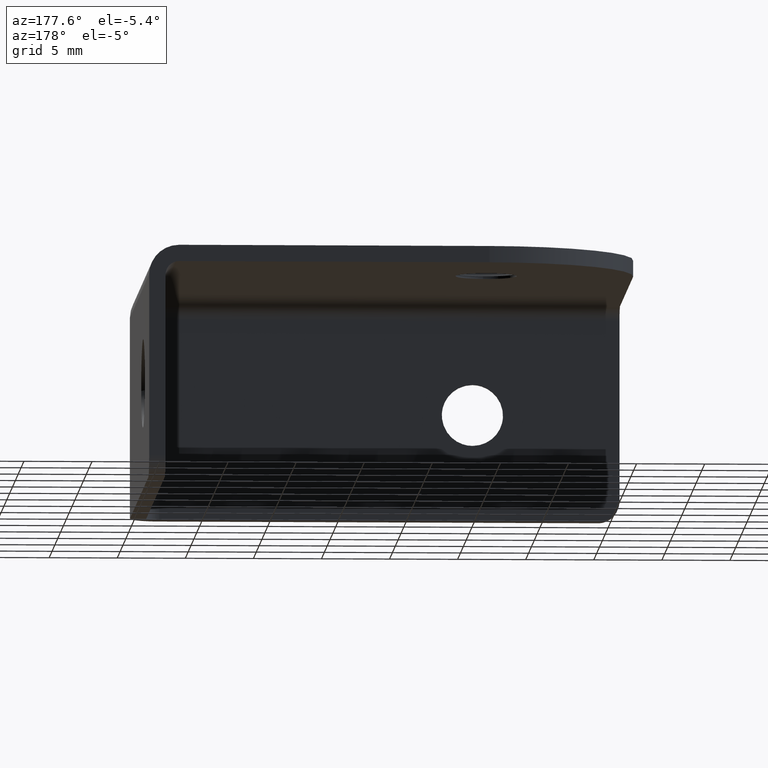
[diagram: clean part render]
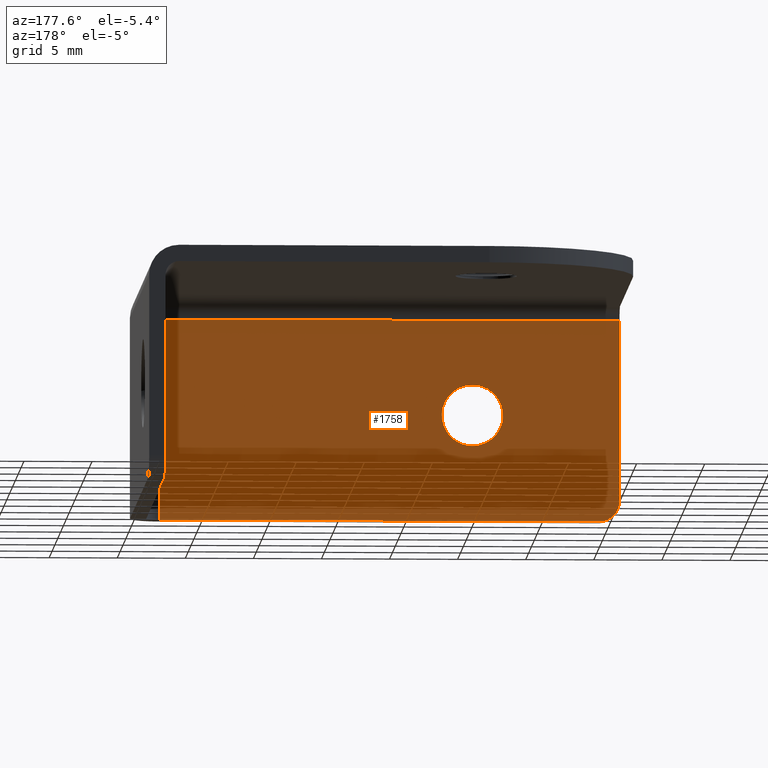
[diagram: same view with one face highlighted and labeled with its STEP entity id]
A machine part, auxiliary view. The second image highlights one B-rep face of the part: STEP entity #1758.
In plain terms, the highlighted face is a freeform B-spline surface patch.
Its self-contained STEP definition (entity closure, byte-faithful):
#735=CARTESIAN_POINT('',(-22.964694322850271,1.200000000000016,7.543273433976493));
#736=VERTEX_POINT('',#735);
#742=CARTESIAN_POINT('',(-25.199999999999999,1.200000000000016,5.549999999999900));
#743=VERTEX_POINT('',#742);
#744=CARTESIAN_POINT('',(-22.964694322850271,1.200000000000016,7.543273433976493));
#745=CARTESIAN_POINT('',(-23.193623364266571,1.200000000000016,5.549999999999900));
#746=CARTESIAN_POINT('',(-25.199999999999999,1.200000000000016,5.549999999999900));
#754=(BOUNDED_CURVE()B_SPLINE_CURVE(2,(#744,#745,#746),.UNSPECIFIED.,.F.,.U.)B_SPLINE_CURVE_WITH_KNOTS((3,3),(0.269767766530224,0.500000000000000),.UNSPECIFIED.)CURVE()GEOMETRIC_REPRESENTATION_ITEM()RATIONAL_B_SPLINE_CURVE((0.957343715445389,0.730266160257708,1.0))REPRESENTATION_ITEM(''));
#755=EDGE_CURVE('',#736,#743,#754,.T.);
#757=CARTESIAN_POINT('',(-27.445803296421388,1.200000000000016,7.662640785591840));
#758=VERTEX_POINT('',#757);
#759=CARTESIAN_POINT('',(-25.199999999999999,1.200000000000016,5.549999999999900));
#760=CARTESIAN_POINT('',(-27.316588649679282,1.200000000000016,5.549999999999900));
#761=CARTESIAN_POINT('',(-27.445803296421388,1.200000000000016,7.662640785591840));
#769=(BOUNDED_CURVE()B_SPLINE_CURVE(2,(#759,#760,#761),.UNSPECIFIED.,.F.,.U.)B_SPLINE_CURVE_WITH_KNOTS((3,3),(0.500000000000000,0.739332962172110),.UNSPECIFIED.)CURVE()GEOMETRIC_REPRESENTATION_ITEM()RATIONAL_B_SPLINE_CURVE((1.0,0.719603993365010,0.976072041523481))REPRESENTATION_ITEM(''));
#770=EDGE_CURVE('',#743,#758,#769,.T.);
#865=CARTESIAN_POINT('',(-25.199999999999999,1.200000000000016,10.049999999999899));
#866=VERTEX_POINT('',#865);
#867=CARTESIAN_POINT('',(-27.445803296421392,1.200000000000016,7.662640785591840));
#868=CARTESIAN_POINT('',(-27.450000000000003,1.200000000000016,7.731256282122168));
#869=CARTESIAN_POINT('',(-27.449999999999999,1.200000000000016,7.799999999999900));
#870=CARTESIAN_POINT('',(-27.449999999999999,1.200000000000016,10.049999999999899));
#871=CARTESIAN_POINT('',(-25.199999999999999,1.200000000000016,10.049999999999899));
#879=(BOUNDED_CURVE()B_SPLINE_CURVE(2,(#867,#868,#869,#870,#871),.UNSPECIFIED.,.F.,.U.)B_SPLINE_CURVE_WITH_KNOTS((3,2,3),(0.739332962172109,0.750000000000000,1.0),.UNSPECIFIED.)CURVE()GEOMETRIC_REPRESENTATION_ITEM()RATIONAL_B_SPLINE_CURVE((0.976072041523480,0.987502787821537,1.0,0.707106781186547,1.0))REPRESENTATION_ITEM(''));
#880=EDGE_CURVE('',#758,#866,#879,.T.);
#882=CARTESIAN_POINT('',(-25.199999999999999,1.200000000000016,10.049999999999899));
#883=CARTESIAN_POINT('',(-22.950000000000010,1.200000000000016,10.049999999999899));
#884=CARTESIAN_POINT('',(-22.949999999999999,1.200000000000016,7.799999999999900));
#885=CARTESIAN_POINT('',(-22.950000000000003,1.200000000000016,7.671216150140869));
#886=CARTESIAN_POINT('',(-22.964694322850274,1.200000000000016,7.543273433976493));
#894=(BOUNDED_CURVE()B_SPLINE_CURVE(2,(#882,#883,#884,#885,#886),.UNSPECIFIED.,.F.,.U.)B_SPLINE_CURVE_WITH_KNOTS((3,2,3),(0.0,0.250000000000000,0.269767766530224),.UNSPECIFIED.)CURVE()GEOMETRIC_REPRESENTATION_ITEM()RATIONAL_B_SPLINE_CURVE((1.0,0.707106781186547,1.0,0.976840620928840,0.957343715445389))REPRESENTATION_ITEM(''));
#895=EDGE_CURVE('',#866,#736,#894,.T.);
#1320=CARTESIAN_POINT('',(-2.200000000000000,1.200000000000016,14.800000000000001));
#1321=VERTEX_POINT('',#1320);
#1366=CARTESIAN_POINT('',(-2.200000000000000,1.200000000000016,0.0));
#1367=VERTEX_POINT('',#1366);
#1383=CARTESIAN_POINT('',(-2.200000000000000,1.200000000000016,14.800000000000001));
#1384=CARTESIAN_POINT('',(-2.200000000000000,1.200000000000016,0.0));
#1385=QUASI_UNIFORM_CURVE('',1,(#1383,#1384),.UNSPECIFIED.,.F.,.U.);
#1386=EDGE_CURVE('',#1321,#1367,#1385,.T.);
#1413=CARTESIAN_POINT('',(-36.0,1.200000000000016,14.800000000000001));
#1414=VERTEX_POINT('',#1413);
#1434=CARTESIAN_POINT('',(-36.0,1.200000000000016,14.800000000000001));
#1435=CARTESIAN_POINT('',(-2.200000000000000,1.200000000000016,14.800000000000001));
#1436=QUASI_UNIFORM_CURVE('',1,(#1434,#1435),.UNSPECIFIED.,.F.,.U.);
#1437=EDGE_CURVE('',#1414,#1321,#1436,.T.);
#1614=CARTESIAN_POINT('',(-34.500000000000000,1.199999999999980,0.0));
#1615=VERTEX_POINT('',#1614);
#1621=CARTESIAN_POINT('',(-34.500000000000000,1.199999999999980,0.0));
#1622=CARTESIAN_POINT('',(-2.200000000000000,1.200000000000016,0.0));
#1623=QUASI_UNIFORM_CURVE('',1,(#1621,#1622),.UNSPECIFIED.,.F.,.U.);
#1624=EDGE_CURVE('',#1615,#1367,#1623,.T.);
#1665=CARTESIAN_POINT('',(-36.0,1.199999999999980,1.500000000000000));
#1666=VERTEX_POINT('',#1665);
#1672=CARTESIAN_POINT('',(-36.000000000000007,1.199999999999980,1.500000000000000));
#1673=CARTESIAN_POINT('',(-36.000000000000014,1.199999999999980,0.0));
#1674=CARTESIAN_POINT('',(-34.500000000000000,1.199999999999980,0.0));
#1682=(BOUNDED_CURVE()B_SPLINE_CURVE(2,(#1672,#1673,#1674),.UNSPECIFIED.,.F.,.U.)CURVE()GEOMETRIC_REPRESENTATION_ITEM()QUASI_UNIFORM_CURVE()RATIONAL_B_SPLINE_CURVE((1.0,0.707106781186548,1.0))REPRESENTATION_ITEM(''));
#1683=EDGE_CURVE('',#1666,#1615,#1682,.T.);
#1712=CARTESIAN_POINT('',(-36.0,1.200000000000016,14.800000000000001));
#1713=CARTESIAN_POINT('',(-36.0,1.199999999999980,1.500000000000000));
#1714=QUASI_UNIFORM_CURVE('',1,(#1712,#1713),.UNSPECIFIED.,.F.,.U.);
#1715=EDGE_CURVE('',#1414,#1666,#1714,.T.);
#1740=CARTESIAN_POINT('',(-37.688309934489041,1.200000000000016,15.539260249178350));
#1741=CARTESIAN_POINT('',(-0.511689158924312,1.200000000000016,15.539260249178350));
#1742=CARTESIAN_POINT('',(-37.688309934489041,1.200000000000016,-0.739260381500661));
#1743=CARTESIAN_POINT('',(-0.511689158924312,1.200000000000016,-0.739260381500661));
#1744=B_SPLINE_SURFACE_WITH_KNOTS('',1,1,((#1740,#1742),(#1741,#1743)),.UNSPECIFIED.,.F.,.F.,.U.,(2,2),(2,2),(0.0,37.176620775564729),(0.0,16.278520630679012),.UNSPECIFIED.);
#1745=ORIENTED_EDGE('',*,*,#1715,.F.);
#1746=ORIENTED_EDGE('',*,*,#1437,.T.);
#1747=ORIENTED_EDGE('',*,*,#1386,.T.);
#1748=ORIENTED_EDGE('',*,*,#1624,.F.);
#1749=ORIENTED_EDGE('',*,*,#1683,.F.);
#1750=EDGE_LOOP('',(#1745,#1746,#1747,#1748,#1749));
#1751=FACE_OUTER_BOUND('',#1750,.T.);
#1752=ORIENTED_EDGE('',*,*,#770,.F.);
#1753=ORIENTED_EDGE('',*,*,#755,.F.);
#1754=ORIENTED_EDGE('',*,*,#895,.F.);
#1755=ORIENTED_EDGE('',*,*,#880,.F.);
#1756=EDGE_LOOP('',(#1752,#1753,#1754,#1755));
#1757=FACE_BOUND('',#1756,.T.);
#1758=ADVANCED_FACE('',(#1751,#1757),#1744,.T.);